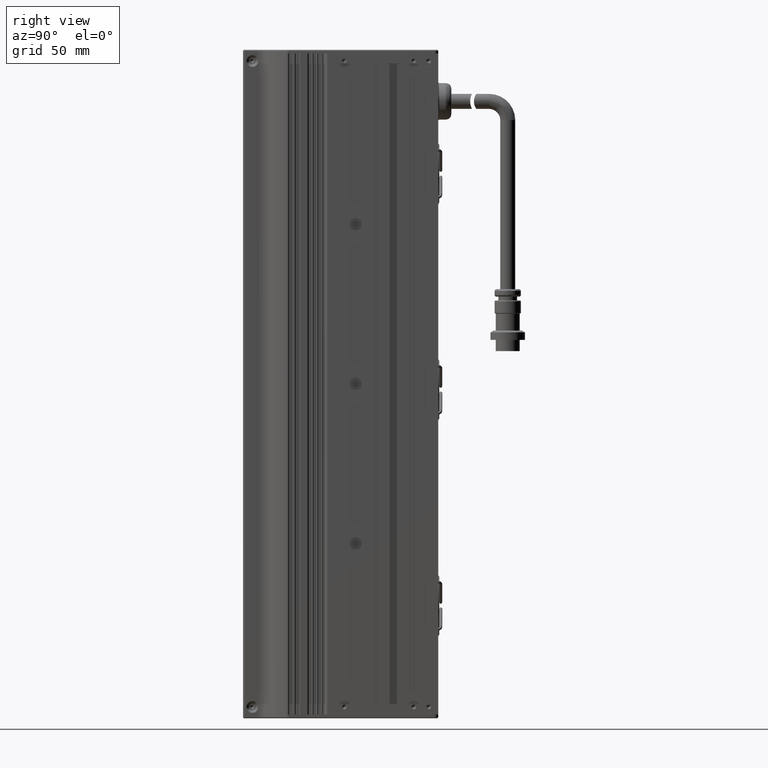
[diagram: clean part render]
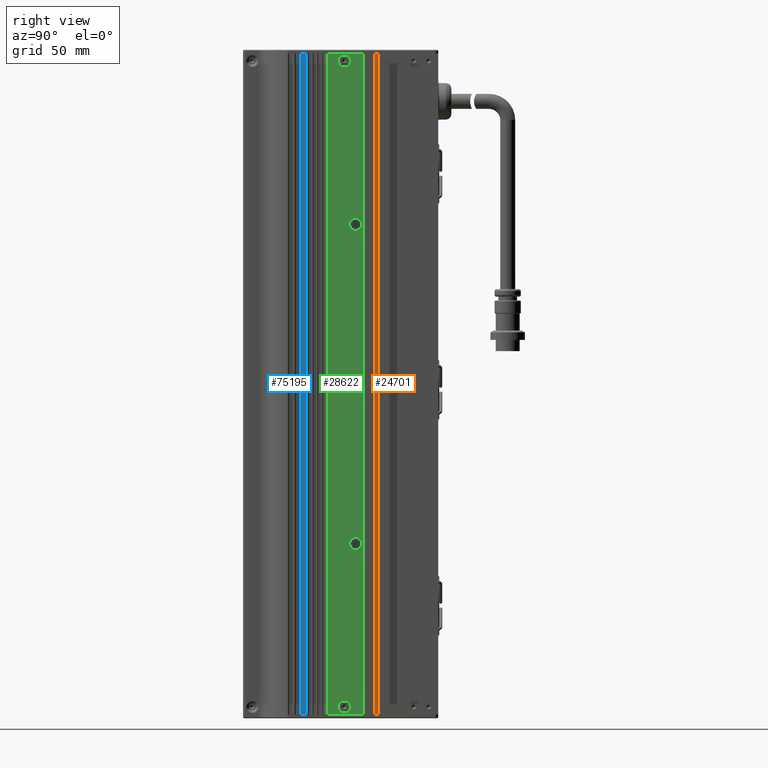
[diagram: same view with three faces highlighted in distinct colors, each labeled with its STEP entity id]
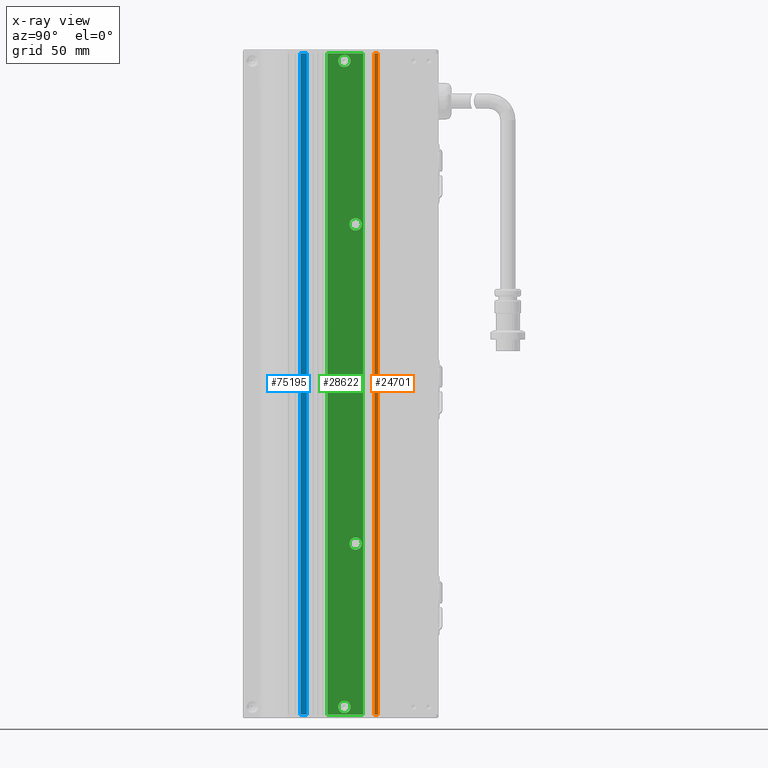
[diagram: x-ray of the same camera — body ghosted, the three highlighted faces saturated]
A machine part, right view with three faces highlighted in distinct colors.
The next image is the same camera in x-ray (body ghosted, the three faces saturated) — at least one of them is partly hidden behind the body in this view.
Their STEP definitions:

[orange] entity #24701 — the highlighted planar face has unit normal (-1, 0, 0).
#1835 = PLANE ( 'NONE',  #78989 ) ;
#4101 = EDGE_LOOP ( 'NONE', ( #87263, #18981, #21032, #95411 ) ) ;
#4159 = DIRECTION ( 'NONE',  ( 0.0000000000000000000, 1.000000000000000000, -0.0000000000000000000 ) ) ;
#4766 = VERTEX_POINT ( 'NONE', #32632 ) ;
#9045 = VERTEX_POINT ( 'NONE', #49287 ) ;
#11377 = LINE ( 'NONE', #47082, #69842 ) ;
#16574 = EDGE_CURVE ( 'NONE', #9045, #4766, #11377, .T. ) ;
#18981 = ORIENTED_EDGE ( 'NONE', *, *, #65013, .F. ) ;
#21032 = ORIENTED_EDGE ( 'NONE', *, *, #23947, .F. ) ;
#23947 = EDGE_CURVE ( 'NONE', #52041, #46939, #112485, .T. ) ;
#24701 = ADVANCED_FACE ( 'NONE', ( #90638 ), #1835, .F. ) ;
#30162 = VECTOR ( 'NONE', #4159, 1000.000000000000000 ) ;
#31677 = CARTESIAN_POINT ( 'NONE',  ( -14.06201180637544100, 10.00452420306966400, 176.0000000000000000 ) ) ;
#32632 = CARTESIAN_POINT ( 'NONE',  ( -14.06201180637544100, 12.00452420306966400, -176.0000000000000000 ) ) ;
#38293 = DIRECTION ( 'NONE',  ( 0.0000000000000000000, 1.000000000000000000, -0.0000000000000000000 ) ) ;
#45572 = CARTESIAN_POINT ( 'NONE',  ( -14.06201180637544100, 12.00452420306966400, 176.0000000000000000 ) ) ;
#46715 = DIRECTION ( 'NONE',  ( -0.0000000000000000000, -0.0000000000000000000, -1.000000000000000000 ) ) ;
#46939 = VERTEX_POINT ( 'NONE', #105860 ) ;
#47082 = CARTESIAN_POINT ( 'NONE',  ( -14.06201180637544100, 12.00452420306966400, 176.0000000000000000 ) ) ;
#49287 = CARTESIAN_POINT ( 'NONE',  ( -14.06201180637544100, 12.00452420306966400, 176.0000000000000300 ) ) ;
#52041 = VERTEX_POINT ( 'NONE', #111520 ) ;
#53557 = VECTOR ( 'NONE', #38293, 1000.000000000000000 ) ;
#54364 = DIRECTION ( 'NONE',  ( -1.000000000000000000, 0.0000000000000000000, 0.0000000000000000000 ) ) ;
#58370 = DIRECTION ( 'NONE',  ( 0.0000000000000000000, 0.0000000000000000000, 1.000000000000000000 ) ) ;
#59076 = LINE ( 'NONE', #71506, #53557 ) ;
#65013 = EDGE_CURVE ( 'NONE', #46939, #9045, #59076, .T. ) ;
#66317 = VECTOR ( 'NONE', #58370, 1000.000000000000000 ) ;
#69842 = VECTOR ( 'NONE', #46715, 1000.000000000000000 ) ;
#71506 = CARTESIAN_POINT ( 'NONE',  ( -14.06201180637544100, 2.004524203069662400, 176.0000000000000000 ) ) ;
#78989 = AXIS2_PLACEMENT_3D ( 'NONE', #45572, #54364, #105670 ) ;
#87263 = ORIENTED_EDGE ( 'NONE', *, *, #16574, .F. ) ;
#90638 = FACE_OUTER_BOUND ( 'NONE', #4101, .T. ) ;
#95411 = ORIENTED_EDGE ( 'NONE', *, *, #111267, .T. ) ;
#99557 = CARTESIAN_POINT ( 'NONE',  ( -14.06201180637544100, 12.00452420306966400, -176.0000000000000000 ) ) ;
#105670 = DIRECTION ( 'NONE',  ( 0.0000000000000000000, 0.0000000000000000000, 1.000000000000000000 ) ) ;
#105860 = CARTESIAN_POINT ( 'NONE',  ( -14.06201180637544100, 10.00452420306966400, 176.0000000000000300 ) ) ;
#109093 = LINE ( 'NONE', #99557, #30162 ) ;
#111267 = EDGE_CURVE ( 'NONE', #52041, #4766, #109093, .T. ) ;
#111520 = CARTESIAN_POINT ( 'NONE',  ( -14.06201180637544100, 10.00452420306966400, -176.0000000000000000 ) ) ;
#112485 = LINE ( 'NONE', #31677, #66317 ) ;

[blue] entity #75195 — the highlighted planar face has unit normal (-1, 0, -0).
#1345 = LINE ( 'NONE', #6237, #85822 ) ;
#6237 = CARTESIAN_POINT ( 'NONE',  ( -13.16201180637545000, -29.49547579693033900, -176.0000000000000000 ) ) ;
#6653 = PLANE ( 'NONE',  #87112 ) ;
#12001 = EDGE_CURVE ( 'NONE', #85964, #62056, #33800, .T. ) ;
#12282 = DIRECTION ( 'NONE',  ( -0.0000000000000000000, -1.000000000000000000, 1.665334536937734300E-016 ) ) ;
#14995 = DIRECTION ( 'NONE',  ( -0.0000000000000000000, 1.665334536937734300E-016, 1.000000000000000000 ) ) ;
#15801 = CARTESIAN_POINT ( 'NONE',  ( -13.16201180637544600, -2.245475796930344700, -176.0000000000000000 ) ) ;
#16491 = CARTESIAN_POINT ( 'NONE',  ( -13.16201180637545000, -2.245475796930342000, -176.0000000000000000 ) ) ;
#17601 = DIRECTION ( 'NONE',  ( -0.0000000000000000000, -1.000000000000000000, 1.665334536937734300E-016 ) ) ;
#22586 = VERTEX_POINT ( 'NONE', #59599 ) ;
#26014 = ORIENTED_EDGE ( 'NONE', *, *, #12001, .F. ) ;
#26320 = EDGE_LOOP ( 'NONE', ( #36481, #26014, #86414, #83827 ) ) ;
#33800 = LINE ( 'NONE', #16491, #43305 ) ;
#35551 = LINE ( 'NONE', #38093, #64265 ) ;
#36481 = ORIENTED_EDGE ( 'NONE', *, *, #85081, .F. ) ;
#37418 = VECTOR ( 'NONE', #51630, 1000.000000000000000 ) ;
#38093 = CARTESIAN_POINT ( 'NONE',  ( -13.16201180637545000, -2.245475796930283000, 176.0000000000000000 ) ) ;
#43305 = VECTOR ( 'NONE', #17601, 1000.000000000000000 ) ;
#44299 = EDGE_CURVE ( 'NONE', #84680, #85964, #95945, .T. ) ;
#51630 = DIRECTION ( 'NONE',  ( 0.0000000000000000000, -1.665334536937734300E-016, -1.000000000000000000 ) ) ;
#55885 = CARTESIAN_POINT ( 'NONE',  ( -13.16201180637545000, -29.49547579693033900, -176.0000000000000000 ) ) ;
#59599 = CARTESIAN_POINT ( 'NONE',  ( -13.16201180637545000, -29.49547579693028300, 176.0000000000000000 ) ) ;
#62056 = VERTEX_POINT ( 'NONE', #55885 ) ;
#64250 = CARTESIAN_POINT ( 'NONE',  ( -13.16201180637545000, -25.99547579693034300, -176.0000000000000000 ) ) ;
#64265 = VECTOR ( 'NONE', #12282, 1000.000000000000000 ) ;
#75195 = ADVANCED_FACE ( 'NONE', ( #110184 ), #6653, .F. ) ;
#76283 = DIRECTION ( 'NONE',  ( 1.241146582044791500E-016, 1.000000000000000000, -1.665334536937734300E-016 ) ) ;
#83827 = ORIENTED_EDGE ( 'NONE', *, *, #96569, .T. ) ;
#84680 = VERTEX_POINT ( 'NONE', #87033 ) ;
#85081 = EDGE_CURVE ( 'NONE', #62056, #22586, #1345, .T. ) ;
#85430 = DIRECTION ( 'NONE',  ( -1.000000000000000000, 1.241146582044791500E-016, -2.066924268481414500E-032 ) ) ;
#85822 = VECTOR ( 'NONE', #14995, 1000.000000000000000 ) ;
#85964 = VERTEX_POINT ( 'NONE', #64250 ) ;
#86414 = ORIENTED_EDGE ( 'NONE', *, *, #44299, .F. ) ;
#87033 = CARTESIAN_POINT ( 'NONE',  ( -13.16201180637545000, -25.99547579693028600, 176.0000000000000000 ) ) ;
#87112 = AXIS2_PLACEMENT_3D ( 'NONE', #15801, #85430, #76283 ) ;
#94964 = CARTESIAN_POINT ( 'NONE',  ( -13.16201180637545000, -25.99547579693034300, -176.0000000000000000 ) ) ;
#95945 = LINE ( 'NONE', #94964, #37418 ) ;
#96569 = EDGE_CURVE ( 'NONE', #84680, #22586, #35551, .T. ) ;
#110184 = FACE_OUTER_BOUND ( 'NONE', #26320, .T. ) ;

[green] entity #28622 — the highlighted planar face has unit normal (-1, 0, -0).
#1740 = CARTESIAN_POINT ( 'NONE',  ( -13.16201180637544600, -5.995475796930278100, 172.0000000000000000 ) ) ;
#1785 = DIRECTION ( 'NONE',  ( 0.0000000000000000000, -2.668805347656624200E-016, -1.000000000000000000 ) ) ;
#2606 = CARTESIAN_POINT ( 'NONE',  ( -13.16201180637544600, -2.245475796930286100, 176.0000000000000000 ) ) ;
#4162 = ORIENTED_EDGE ( 'NONE', *, *, #48604, .F. ) ;
#4463 = ORIENTED_EDGE ( 'NONE', *, *, #26314, .F. ) ;
#4742 = CARTESIAN_POINT ( 'NONE',  ( -13.16201180637544600, -5.995475796930279000, 168.7499999999999700 ) ) ;
#5711 = VERTEX_POINT ( 'NONE', #80023 ) ;
#6506 = DIRECTION ( 'NONE',  ( 1.000000000000000000, 0.0000000000000000000, 0.0000000000000000000 ) ) ;
#6803 = FACE_BOUND ( 'NONE', #52283, .T. ) ;
#6962 = CARTESIAN_POINT ( 'NONE',  ( -13.16201180637544600, 0.004524203069462395100, -85.00000000000002800 ) ) ;
#7172 = CARTESIAN_POINT ( 'NONE',  ( -13.16201180637544600, -1.885792958162385200E-013, 3.249999999999981800 ) ) ;
#8048 = DIRECTION ( 'NONE',  ( 0.0000000000000000000, -2.668805347656624200E-016, -1.000000000000000000 ) ) ;
#10569 = CARTESIAN_POINT ( 'NONE',  ( -13.16201180637544600, -5.995475796930334900, -172.0000000000000300 ) ) ;
#10623 = DIRECTION ( 'NONE',  ( 1.241146582044791500E-016, 1.000000000000000000, -1.665334536937734300E-016 ) ) ;
#11082 = EDGE_LOOP ( 'NONE', ( #45111, #77705, #50488, #13656 ) ) ;
#11373 = CARTESIAN_POINT ( 'NONE',  ( -13.16201180637544600, 0.004524203069461853900, -88.25000000000002800 ) ) ;
#11969 = CARTESIAN_POINT ( 'NONE',  ( -13.16201180637544300, 4.004524203069664200, -176.0000000000000600 ) ) ;
#13656 = ORIENTED_EDGE ( 'NONE', *, *, #106540, .F. ) ;
#14382 = VERTEX_POINT ( 'NONE', #46548 ) ;
#15344 = DIRECTION ( 'NONE',  ( 1.000000000000000000, 0.0000000000000000000, 0.0000000000000000000 ) ) ;
#15909 = CARTESIAN_POINT ( 'NONE',  ( -13.16201180637544600, 0.004524203069491018100, 84.99999999999997200 ) ) ;
#16284 = DIRECTION ( 'NONE',  ( 1.000000000000000000, 0.0000000000000000000, 0.0000000000000000000 ) ) ;
#16308 = FACE_OUTER_BOUND ( 'NONE', #11082, .T. ) ;
#16475 = EDGE_LOOP ( 'NONE', ( #4162, #61043 ) ) ;
#17088 = ORIENTED_EDGE ( 'NONE', *, *, #22035, .F. ) ;
#17551 = EDGE_CURVE ( 'NONE', #30918, #68621, #52396, .T. ) ;
#17728 = DIRECTION ( 'NONE',  ( 1.000000000000000000, 0.0000000000000000000, 0.0000000000000000000 ) ) ;
#17977 = CARTESIAN_POINT ( 'NONE',  ( -13.16201180637544600, 0.004524203069462395100, -85.00000000000002800 ) ) ;
#20738 = VERTEX_POINT ( 'NONE', #4742 ) ;
#20794 = CARTESIAN_POINT ( 'NONE',  ( -13.16201180637544600, -14.99547579693033800, -176.0000000000000000 ) ) ;
#22035 = EDGE_CURVE ( 'NONE', #36281, #14382, #30912, .T. ) ;
#22557 = ORIENTED_EDGE ( 'NONE', *, *, #36394, .F. ) ;
#24926 = ORIENTED_EDGE ( 'NONE', *, *, #32303, .F. ) ;
#25027 = DIRECTION ( 'NONE',  ( 0.0000000000000000000, -1.665397087063076300E-016, -1.000000000000000000 ) ) ;
#25292 = VERTEX_POINT ( 'NONE', #98683 ) ;
#26010 = CARTESIAN_POINT ( 'NONE',  ( -13.16201180637544600, -14.99547579693027900, 176.0000000000000000 ) ) ;
#26155 = AXIS2_PLACEMENT_3D ( 'NONE', #6962, #15344, #76206 ) ;
#26314 = EDGE_CURVE ( 'NONE', #14382, #36281, #93958, .T. ) ;
#27944 = DIRECTION ( 'NONE',  ( 0.0000000000000000000, -2.668805347656624200E-016, -1.000000000000000000 ) ) ;
#27982 = EDGE_LOOP ( 'NONE', ( #4463, #17088 ) ) ;
#28315 = AXIS2_PLACEMENT_3D ( 'NONE', #43828, #52607, #108453 ) ;
#28622 = ADVANCED_FACE ( 'NONE', ( #16308, #47612, #85777, #70833, #6803, #99276 ), #64924, .F. ) ;
#29452 = DIRECTION ( 'NONE',  ( 1.241146582044791500E-016, 1.000000000000000000, -1.665334536937734300E-016 ) ) ;
#29614 = LINE ( 'NONE', #92811, #90939 ) ;
#30846 = CARTESIAN_POINT ( 'NONE',  ( -13.16201180637544600, 0.004524203069463334500, -81.75000000000004300 ) ) ;
#30912 = CIRCLE ( 'NONE', #61243, 3.250000000000002700 ) ;
#30918 = VERTEX_POINT ( 'NONE', #30846 ) ;
#31848 = ORIENTED_EDGE ( 'NONE', *, *, #36276, .F. ) ;
#32303 = EDGE_CURVE ( 'NONE', #62574, #36932, #45556, .T. ) ;
#35242 = LINE ( 'NONE', #2606, #53008 ) ;
#35532 = DIRECTION ( 'NONE',  ( 0.0000000000000000000, -1.665397087063076300E-016, -1.000000000000000000 ) ) ;
#36276 = EDGE_CURVE ( 'NONE', #36932, #62574, #104867, .T. ) ;
#36281 = VERTEX_POINT ( 'NONE', #112658 ) ;
#36287 = CARTESIAN_POINT ( 'NONE',  ( -13.16201180637544600, -5.995475796930278100, 172.0000000000000000 ) ) ;
#36394 = EDGE_CURVE ( 'NONE', #68621, #30918, #93213, .T. ) ;
#36451 = CARTESIAN_POINT ( 'NONE',  ( -13.16201180637544600, 4.004524203069664200, -176.0000000000000000 ) ) ;
#36932 = VERTEX_POINT ( 'NONE', #7172 ) ;
#37053 = LINE ( 'NONE', #36451, #72473 ) ;
#37431 = VERTEX_POINT ( 'NONE', #26010 ) ;
#39375 = CARTESIAN_POINT ( 'NONE',  ( -13.16201180637544300, 4.004524203069722800, 176.0000000000000000 ) ) ;
#40656 = DIRECTION ( 'NONE',  ( -0.0000000000000000000, 1.665334536937734300E-016, 1.000000000000000000 ) ) ;
#42110 = CARTESIAN_POINT ( 'NONE',  ( -13.16201180637544600, 0.004524203069491957400, 88.24999999999997200 ) ) ;
#43828 = CARTESIAN_POINT ( 'NONE',  ( -13.16201180637544600, -1.895185397504661800E-013, -1.425173464746300800E-014 ) ) ;
#43835 = DIRECTION ( 'NONE',  ( 0.0000000000000000000, -1.665334536937724200E-016, -1.000000000000000000 ) ) ;
#44199 = CIRCLE ( 'NONE', #44877, 3.249999999999988900 ) ;
#44877 = AXIS2_PLACEMENT_3D ( 'NONE', #15909, #16284, #25027 ) ;
#45111 = ORIENTED_EDGE ( 'NONE', *, *, #50678, .F. ) ;
#45556 = CIRCLE ( 'NONE', #28315, 3.249999999999996000 ) ;
#46548 = CARTESIAN_POINT ( 'NONE',  ( -13.16201180637544600, -5.995475796930335800, -175.2500000000000600 ) ) ;
#47612 = FACE_BOUND ( 'NONE', #81232, .T. ) ;
#48118 = DIRECTION ( 'NONE',  ( -1.000000000000000000, 1.241146582044791500E-016, -2.066924268481414500E-032 ) ) ;
#48604 = EDGE_CURVE ( 'NONE', #25292, #111588, #44199, .T. ) ;
#48958 = VERTEX_POINT ( 'NONE', #39375 ) ;
#49075 = CIRCLE ( 'NONE', #92453, 3.250000000000002700 ) ;
#50488 = ORIENTED_EDGE ( 'NONE', *, *, #74313, .F. ) ;
#50678 = EDGE_CURVE ( 'NONE', #76739, #37431, #29614, .T. ) ;
#52283 = EDGE_LOOP ( 'NONE', ( #24926, #31848 ) ) ;
#52396 = CIRCLE ( 'NONE', #26155, 3.249999999999988900 ) ;
#52607 = DIRECTION ( 'NONE',  ( 1.000000000000000000, 0.0000000000000000000, 0.0000000000000000000 ) ) ;
#53008 = VECTOR ( 'NONE', #10623, 1000.000000000000000 ) ;
#53883 = DIRECTION ( 'NONE',  ( 1.000000000000000000, 0.0000000000000000000, 0.0000000000000000000 ) ) ;
#54108 = DIRECTION ( 'NONE',  ( 0.0000000000000000000, -1.665397087063076300E-016, -1.000000000000000000 ) ) ;
#54217 = VECTOR ( 'NONE', #102555, 1000.000000000000000 ) ;
#54308 = DIRECTION ( 'NONE',  ( 1.000000000000000000, 0.0000000000000000000, 0.0000000000000000000 ) ) ;
#61043 = ORIENTED_EDGE ( 'NONE', *, *, #74789, .F. ) ;
#61243 = AXIS2_PLACEMENT_3D ( 'NONE', #10569, #54308, #1785 ) ;
#62574 = VERTEX_POINT ( 'NONE', #89185 ) ;
#64924 = PLANE ( 'NONE',  #70928 ) ;
#67211 = ORIENTED_EDGE ( 'NONE', *, *, #111715, .F. ) ;
#67826 = CARTESIAN_POINT ( 'NONE',  ( -13.16201180637544600, -5.995475796930334900, -172.0000000000000300 ) ) ;
#68535 = CIRCLE ( 'NONE', #105647, 3.250000000000002700 ) ;
#68621 = VERTEX_POINT ( 'NONE', #11373 ) ;
#69798 = CARTESIAN_POINT ( 'NONE',  ( -13.16201180637544600, -1.895185397504661800E-013, -1.425173464746300800E-014 ) ) ;
#70833 = FACE_BOUND ( 'NONE', #94464, .T. ) ;
#70928 = AXIS2_PLACEMENT_3D ( 'NONE', #74011, #48118, #29452 ) ;
#71175 = DIRECTION ( 'NONE',  ( 0.0000000000000000000, -1.665334536937734300E-016, -1.000000000000000000 ) ) ;
#72473 = VECTOR ( 'NONE', #71175, 1000.000000000000000 ) ;
#74011 = CARTESIAN_POINT ( 'NONE',  ( -13.16201180637544600, -2.245475796930344700, -176.0000000000000000 ) ) ;
#74313 = EDGE_CURVE ( 'NONE', #48958, #75096, #37053, .T. ) ;
#74789 = EDGE_CURVE ( 'NONE', #111588, #25292, #92661, .T. ) ;
#74818 = AXIS2_PLACEMENT_3D ( 'NONE', #67826, #6506, #8048 ) ;
#75096 = VERTEX_POINT ( 'NONE', #11969 ) ;
#76206 = DIRECTION ( 'NONE',  ( 0.0000000000000000000, -1.665397087063076300E-016, -1.000000000000000000 ) ) ;
#76739 = VERTEX_POINT ( 'NONE', #20794 ) ;
#77705 = ORIENTED_EDGE ( 'NONE', *, *, #106889, .F. ) ;
#80023 = CARTESIAN_POINT ( 'NONE',  ( -13.16201180637544600, -5.995475796930277200, 175.2500000000000000 ) ) ;
#80097 = DIRECTION ( 'NONE',  ( 1.000000000000000000, 0.0000000000000000000, 0.0000000000000000000 ) ) ;
#80611 = ORIENTED_EDGE ( 'NONE', *, *, #86525, .F. ) ;
#81232 = EDGE_LOOP ( 'NONE', ( #67211, #80611 ) ) ;
#85777 = FACE_BOUND ( 'NONE', #27982, .T. ) ;
#86525 = EDGE_CURVE ( 'NONE', #5711, #20738, #68535, .T. ) ;
#86803 = ORIENTED_EDGE ( 'NONE', *, *, #17551, .F. ) ;
#86902 = DIRECTION ( 'NONE',  ( 1.000000000000000000, 0.0000000000000000000, 0.0000000000000000000 ) ) ;
#89185 = CARTESIAN_POINT ( 'NONE',  ( -13.16201180637544600, -1.900597734749709400E-013, -3.250000000000010200 ) ) ;
#90939 = VECTOR ( 'NONE', #40656, 1000.000000000000000 ) ;
#92453 = AXIS2_PLACEMENT_3D ( 'NONE', #1740, #53883, #97553 ) ;
#92661 = CIRCLE ( 'NONE', #103685, 3.249999999999988900 ) ;
#92811 = CARTESIAN_POINT ( 'NONE',  ( -13.16201180637544600, -14.99547579693033800, -176.0000000000000000 ) ) ;
#93213 = CIRCLE ( 'NONE', #102205, 3.249999999999988900 ) ;
#93737 = LINE ( 'NONE', #111691, #54217 ) ;
#93958 = CIRCLE ( 'NONE', #74818, 3.250000000000002700 ) ;
#94464 = EDGE_LOOP ( 'NONE', ( #22557, #86803 ) ) ;
#96673 = DIRECTION ( 'NONE',  ( 1.000000000000000000, 0.0000000000000000000, 0.0000000000000000000 ) ) ;
#97553 = DIRECTION ( 'NONE',  ( 0.0000000000000000000, -2.668805347656624200E-016, -1.000000000000000000 ) ) ;
#98683 = CARTESIAN_POINT ( 'NONE',  ( -13.16201180637544600, 0.004524203069490476800, 81.74999999999998600 ) ) ;
#99276 = FACE_BOUND ( 'NONE', #16475, .T. ) ;
#102205 = AXIS2_PLACEMENT_3D ( 'NONE', #17977, #96673, #54108 ) ;
#102555 = DIRECTION ( 'NONE',  ( -1.241146582044791500E-016, -1.000000000000000000, 1.665334536937734300E-016 ) ) ;
#103685 = AXIS2_PLACEMENT_3D ( 'NONE', #104789, #17728, #35532 ) ;
#104789 = CARTESIAN_POINT ( 'NONE',  ( -13.16201180637544600, 0.004524203069491018100, 84.99999999999997200 ) ) ;
#104867 = CIRCLE ( 'NONE', #111723, 3.249999999999996000 ) ;
#105647 = AXIS2_PLACEMENT_3D ( 'NONE', #36287, #80097, #27944 ) ;
#106540 = EDGE_CURVE ( 'NONE', #37431, #48958, #35242, .T. ) ;
#106889 = EDGE_CURVE ( 'NONE', #75096, #76739, #93737, .T. ) ;
#108453 = DIRECTION ( 'NONE',  ( 0.0000000000000000000, -1.665334536937724200E-016, -1.000000000000000000 ) ) ;
#111588 = VERTEX_POINT ( 'NONE', #42110 ) ;
#111691 = CARTESIAN_POINT ( 'NONE',  ( -13.16201180637544600, -2.245475796930344700, -176.0000000000000000 ) ) ;
#111715 = EDGE_CURVE ( 'NONE', #20738, #5711, #49075, .T. ) ;
#111723 = AXIS2_PLACEMENT_3D ( 'NONE', #69798, #86902, #43835 ) ;
#112658 = CARTESIAN_POINT ( 'NONE',  ( -13.16201180637544600, -5.995475796930334100, -168.7500000000000300 ) ) ;